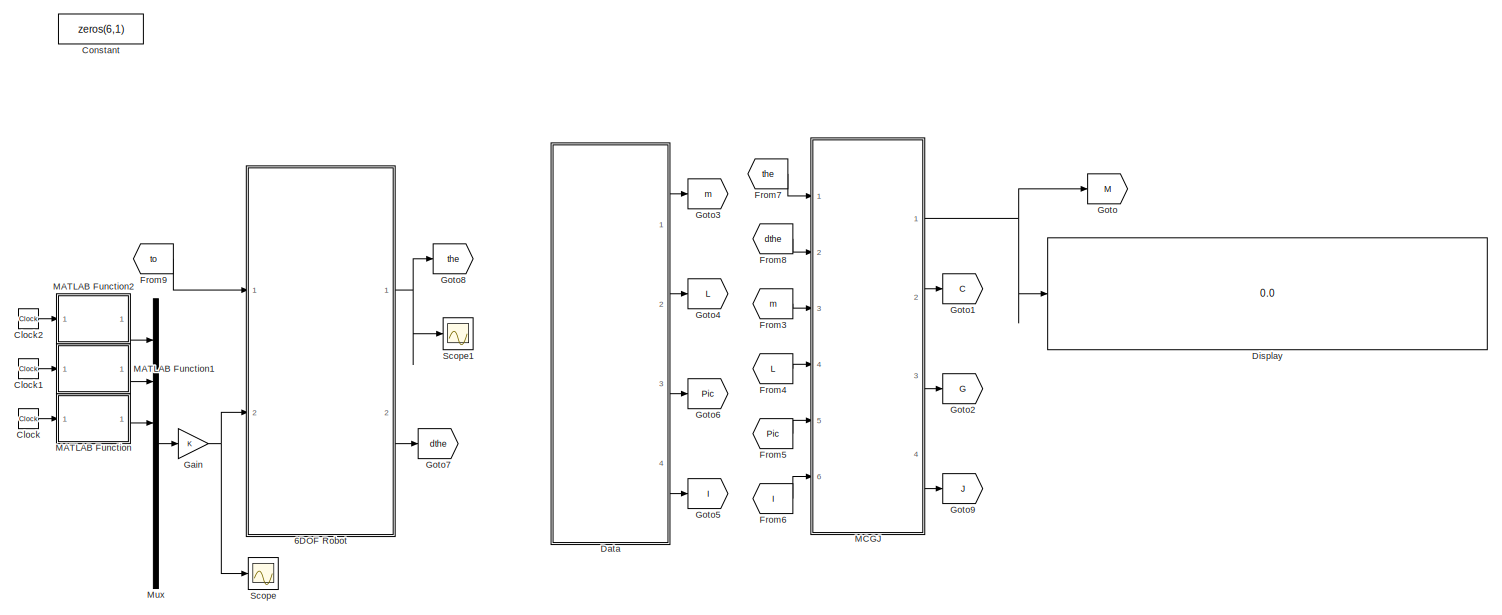
[diagram: root canvas - part 1/2, most of the canvas]
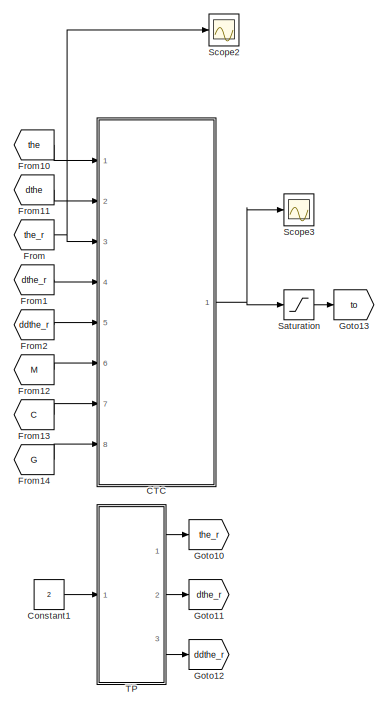
[diagram: root canvas - part 2/2, left side, full height]
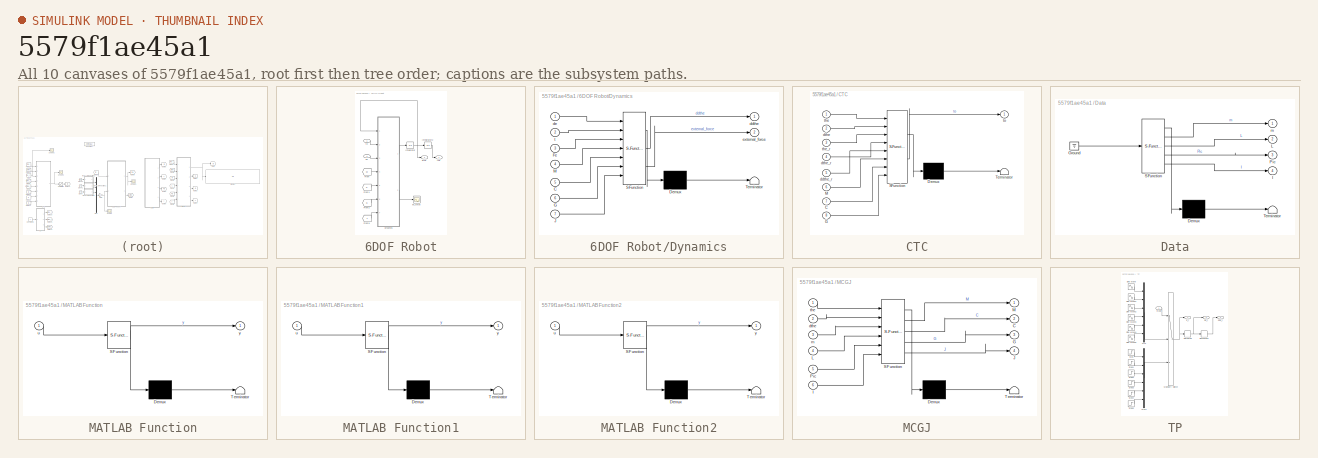
[diagram: thumbnail index - all 10 canvases of the model, root first then tree order]
MODEL slx_5579f1ae45a1
KIND model
CONFIG AbsTol = auto
CONFIG EnableMultiTasking = off
CONFIG FixedStep = 0.01
CONFIG MaxStep = auto
CONFIG MinStep = auto
CONFIG RelTol = 1e-3
CONFIG SampleTimeConstraint = Unconstrained
CONFIG Solver = FixedStepAuto
CONFIG SolverName = FixedStepAuto
CONFIG StartTime = 0.0
CONFIG StopTime = 30
BLOCK [SubSystem] 6DOF Robot
  Ports = [2, 2]
  RequestExecContextInheritance = off
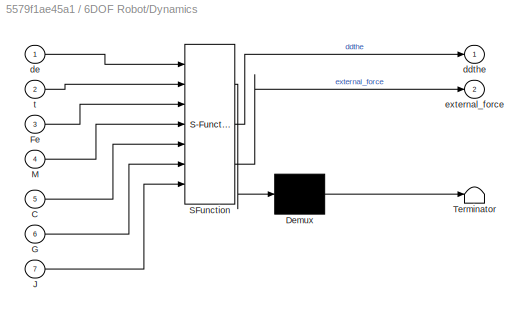
BLOCK [SubSystem] 6DOF Robot/Dynamics
  ErrorFcn = Stateflow.Translate.translate
  PermitHierarchicalResolution = ExplicitOnly
  Ports = [7, 2]
  RequestExecContextInheritance = off
  SFBlockType = MATLAB Function
  TreatAsAtomicUnit = on
BLOCK [Demux] 6DOF Robot/Dynamics/ Demux 
  DisplayOption = bar
  Outputs = 1
  Ports = [1, 1]
BLOCK [S-Function] 6DOF Robot/Dynamics/ SFunction 
  EnableBusSupport = on
  FunctionName = sf_sfun
  PortCounts = [7 3]
  Ports = [7, 3]
  SFcnIsStateOwnerBlock = off
  SFunctionDeploymentMode = off
  Tag = Stateflow S-Function DYN_04 1
BLOCK [Terminator] 6DOF Robot/Dynamics/ Terminator 
BLOCK [Inport] 6DOF Robot/Dynamics/C
  IconDisplay = Port number
  Port = 5
BLOCK [Inport] 6DOF Robot/Dynamics/Fe
  IconDisplay = Port number
  Port = 3
BLOCK [Inport] 6DOF Robot/Dynamics/G
  IconDisplay = Port number
  Port = 6
BLOCK [Inport] 6DOF Robot/Dynamics/J
  IconDisplay = Port number
  Port = 7
BLOCK [Inport] 6DOF Robot/Dynamics/M
  IconDisplay = Port number
  Port = 4
BLOCK [Outport] 6DOF Robot/Dynamics/ddthe
  IconDisplay = Port number
BLOCK [Inport] 6DOF Robot/Dynamics/de
  IconDisplay = Port number
BLOCK [Outport] 6DOF Robot/Dynamics/external_force
  IconDisplay = Port number
  Port = 2
BLOCK [Inport] 6DOF Robot/Dynamics/t
  IconDisplay = Port number
  Port = 2
BLOCK [Inport] 6DOF Robot/Fe
  IconDisplay = Port number
  Port = 2
BLOCK [From] 6DOF Robot/From
  GotoTag = M
  TagVisibility = global
BLOCK [From] 6DOF Robot/From1
  GotoTag = C
  TagVisibility = global
BLOCK [From] 6DOF Robot/From2
  GotoTag = G
  TagVisibility = global
BLOCK [From] 6DOF Robot/From9
  GotoTag = J
  TagVisibility = global
BLOCK [Integrator] 6DOF Robot/Integrator
  InitialCondition = [0;0;0;0;0;0]
  LowerSaturationLimit = -pi
  Ports = [1, 1]
  UpperSaturationLimit = pi
BLOCK [Integrator] 6DOF Robot/Integrator2
  InitialCondition = [0;0;0;0;0;0]
  LowerSaturationLimit = -[170;120;90;120;60;180]*pi/180
  Ports = [1, 1]
  UpperSaturationLimit = [170;120;90;120;60;180]*pi/180
BLOCK [Outport] 6DOF Robot/dthe
  IconDisplay = Port number
  Port = 2
BLOCK [Scope] 6DOF Robot/ex_force
  Floating = off
  NumInputPorts = 1
  Ports = [1]
  ScopeSpecificationString = Simulink.scopes.TimeScopeBlockCfg('CurrentConfiguration', extmgr.ConfigurationSet(extmgr.Configuration('Core','General UI',true),extmgr.Configuration('Core','Source UI',true),extmgr.Configuration('Sources','WiredSimulink',true,'DataLoggingVariableName','ScopeData1'),extmgr.Configuration('Visuals','Time Domain',true,'SerializedDisplays',{struct('MinYLimReal','-168.72496','MaxYLimReal','168.74722','...<+1590ch>
BLOCK [Outport] 6DOF Robot/the
  IconDisplay = Port number
BLOCK [Inport] 6DOF Robot/to
  IconDisplay = Port number
BLOCK [SubSystem] CTC
  ErrorFcn = Stateflow.Translate.translate
  PermitHierarchicalResolution = ExplicitOnly
  Ports = [8, 1]
  RequestExecContextInheritance = off
  SFBlockType = MATLAB Function
  TreatAsAtomicUnit = on
BLOCK [Demux] CTC/ Demux 
  DisplayOption = bar
  Outputs = 1
  Ports = [1, 1]
BLOCK [S-Function] CTC/ SFunction 
  EnableBusSupport = on
  FunctionName = sf_sfun
  PortCounts = [8 2]
  Ports = [8, 2]
  SFcnIsStateOwnerBlock = off
  SFunctionDeploymentMode = off
  Tag = Stateflow S-Function DYN_04 4
BLOCK [Terminator] CTC/ Terminator 
BLOCK [Inport] CTC/C
  IconDisplay = Port number
  Port = 7
BLOCK [Inport] CTC/G
  IconDisplay = Port number
  Port = 8
BLOCK [Inport] CTC/M
  IconDisplay = Port number
  Port = 6
BLOCK [Inport] CTC/ddthe_r
  IconDisplay = Port number
  Port = 5
BLOCK [Inport] CTC/dthe
  IconDisplay = Port number
  Port = 2
BLOCK [Inport] CTC/dthe_r
  IconDisplay = Port number
  Port = 4
BLOCK [Inport] CTC/the
  IconDisplay = Port number
BLOCK [Inport] CTC/the_r
  IconDisplay = Port number
  Port = 3
BLOCK [Outport] CTC/to
  IconDisplay = Port number
BLOCK [Clock] Clock
BLOCK [Clock] Clock1
BLOCK [Clock] Clock2
BLOCK [Constant] Constant
  Commented = on
  Value = zeros(6,1)
BLOCK [Constant] Constant1
  Value = 2
BLOCK [SubSystem] Data
  ErrorFcn = Stateflow.Translate.translate
  PermitHierarchicalResolution = ExplicitOnly
  Ports = [0, 4]
  RequestExecContextInheritance = off
  SFBlockType = MATLAB Function
  TreatAsAtomicUnit = on
BLOCK [Demux] Data/ Demux 
  DisplayOption = bar
  Outputs = 1
  Ports = [1, 1]
BLOCK [Ground] Data/ Ground 
BLOCK [S-Function] Data/ SFunction 
  EnableBusSupport = on
  FunctionName = sf_sfun
  PortCounts = [1 5]
  Ports = [1, 5]
  SFcnIsStateOwnerBlock = off
  SFunctionDeploymentMode = off
  Tag = Stateflow S-Function DYN_04 3
BLOCK [Terminator] Data/ Terminator 
BLOCK [Outport] Data/I
  IconDisplay = Port number
  Port = 4
BLOCK [Outport] Data/L
  IconDisplay = Port number
  Port = 2
BLOCK [Outport] Data/Pic
  IconDisplay = Port number
  Port = 3
BLOCK [Outport] Data/m
  IconDisplay = Port number
BLOCK [Display] Display
  Decimation = 1
  Ports = [1]
BLOCK [From] From
  GotoTag = the_r
BLOCK [From] From1
  GotoTag = dthe_r
BLOCK [From] From10
  GotoTag = the
BLOCK [From] From11
  GotoTag = dthe
BLOCK [From] From12
  GotoTag = M
  TagVisibility = global
BLOCK [From] From13
  GotoTag = C
  TagVisibility = global
BLOCK [From] From14
  GotoTag = G
  TagVisibility = global
BLOCK [From] From2
  GotoTag = ddthe_r
BLOCK [From] From3
  GotoTag = m
BLOCK [From] From4
  GotoTag = L
BLOCK [From] From5
  GotoTag = Pic
BLOCK [From] From6
  GotoTag = I
BLOCK [From] From7
  GotoTag = the
BLOCK [From] From8
  GotoTag = dthe
BLOCK [From] From9
  GotoTag = to
BLOCK [Gain] Gain
  OutDataTypeStr = Inherit: Inherit via internal rule
  ParamDataTypeStr = Inherit: Inherit via internal rule
  SaturateOnIntegerOverflow = off
BLOCK [Goto] Goto
  GotoTag = M
  TagVisibility = global
BLOCK [Goto] Goto1
  GotoTag = C
  TagVisibility = global
BLOCK [Goto] Goto10
  GotoTag = the_r
BLOCK [Goto] Goto11
  GotoTag = dthe_r
BLOCK [Goto] Goto12
  GotoTag = ddthe_r
BLOCK [Goto] Goto13
  GotoTag = to
BLOCK [Goto] Goto2
  GotoTag = G
  TagVisibility = global
BLOCK [Goto] Goto3
  GotoTag = m
BLOCK [Goto] Goto4
  GotoTag = L
BLOCK [Goto] Goto5
  GotoTag = I
BLOCK [Goto] Goto6
  GotoTag = Pic
BLOCK [Goto] Goto7
  GotoTag = dthe
BLOCK [Goto] Goto8
  GotoTag = the
BLOCK [Goto] Goto9
  GotoTag = J
  TagVisibility = global
BLOCK [SubSystem] MATLAB Function
  ErrorFcn = Stateflow.Translate.translate
  PermitHierarchicalResolution = ExplicitOnly
  Ports = [1, 1]
  RequestExecContextInheritance = off
  SFBlockType = MATLAB Function
  TreatAsAtomicUnit = on
BLOCK [Demux] MATLAB Function/ Demux 
  Outputs = 1
  Ports = [1, 1]
BLOCK [S-Function] MATLAB Function/ SFunction 
  EnableBusSupport = on
  FunctionName = sf_sfun
  PortCounts = [1 2]
  Ports = [1, 2]
  SFcnIsStateOwnerBlock = off
  SFunctionDeploymentMode = off
  Tag = Stateflow S-Function DYN_04 5
BLOCK [Terminator] MATLAB Function/ Terminator 
BLOCK [Inport] MATLAB Function/u
  IconDisplay = Port number
BLOCK [Outport] MATLAB Function/y
  IconDisplay = Port number
BLOCK [SubSystem] MATLAB Function1
  ErrorFcn = Stateflow.Translate.translate
  PermitHierarchicalResolution = ExplicitOnly
  Ports = [1, 1]
  RequestExecContextInheritance = off
  SFBlockType = MATLAB Function
  TreatAsAtomicUnit = on
BLOCK [Demux] MATLAB Function1/ Demux 
  Outputs = 1
  Ports = [1, 1]
BLOCK [S-Function] MATLAB Function1/ SFunction 
  EnableBusSupport = on
  FunctionName = sf_sfun
  PortCounts = [1 2]
  Ports = [1, 2]
  SFcnIsStateOwnerBlock = off
  SFunctionDeploymentMode = off
  Tag = Stateflow S-Function DYN_04 6
BLOCK [Terminator] MATLAB Function1/ Terminator 
BLOCK [Inport] MATLAB Function1/u
  IconDisplay = Port number
BLOCK [Outport] MATLAB Function1/y
  IconDisplay = Port number
BLOCK [SubSystem] MATLAB Function2
  ErrorFcn = Stateflow.Translate.translate
  PermitHierarchicalResolution = ExplicitOnly
  Ports = [1, 1]
  RequestExecContextInheritance = off
  SFBlockType = MATLAB Function
  TreatAsAtomicUnit = on
BLOCK [Demux] MATLAB Function2/ Demux 
  Outputs = 1
  Ports = [1, 1]
BLOCK [S-Function] MATLAB Function2/ SFunction 
  EnableBusSupport = on
  FunctionName = sf_sfun
  PortCounts = [1 2]
  Ports = [1, 2]
  SFcnIsStateOwnerBlock = off
  SFunctionDeploymentMode = off
  Tag = Stateflow S-Function DYN_04 7
BLOCK [Terminator] MATLAB Function2/ Terminator 
BLOCK [Inport] MATLAB Function2/u
  IconDisplay = Port number
BLOCK [Outport] MATLAB Function2/y
  IconDisplay = Port number
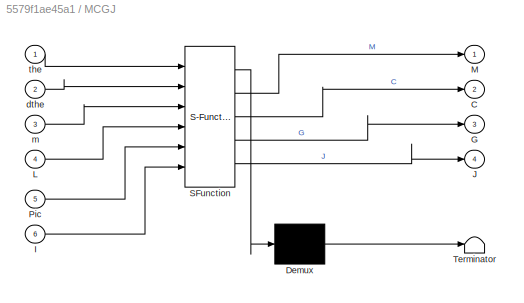
BLOCK [SubSystem] MCGJ
  ErrorFcn = Stateflow.Translate.translate
  PermitHierarchicalResolution = ExplicitOnly
  Ports = [6, 4]
  RequestExecContextInheritance = off
  SFBlockType = MATLAB Function
  TreatAsAtomicUnit = on
BLOCK [Demux] MCGJ/ Demux 
  DisplayOption = bar
  Outputs = 1
  Ports = [1, 1]
BLOCK [S-Function] MCGJ/ SFunction 
  EnableBusSupport = on
  FunctionName = sf_sfun
  PortCounts = [6 5]
  Ports = [6, 5]
  SFcnIsStateOwnerBlock = off
  SFunctionDeploymentMode = off
  Tag = Stateflow S-Function DYN_04 2
BLOCK [Terminator] MCGJ/ Terminator 
BLOCK [Outport] MCGJ/C
  IconDisplay = Port number
  Port = 2
BLOCK [Outport] MCGJ/G
  IconDisplay = Port number
  Port = 3
BLOCK [Inport] MCGJ/I
  IconDisplay = Port number
  Port = 6
BLOCK [Outport] MCGJ/J
  IconDisplay = Port number
  Port = 4
BLOCK [Inport] MCGJ/L
  IconDisplay = Port number
  Port = 4
BLOCK [Outport] MCGJ/M
  IconDisplay = Port number
  VectorParamsAs1DForOutWhenUnconnected = on
BLOCK [Inport] MCGJ/Pic
  IconDisplay = Port number
  Port = 5
BLOCK [Inport] MCGJ/dthe
  IconDisplay = Port number
  Port = 2
BLOCK [Inport] MCGJ/m
  IconDisplay = Port number
  Port = 3
BLOCK [Inport] MCGJ/the
  IconDisplay = Port number
BLOCK [Mux] Mux
  DisplayOption = bar
  Inputs = 6
  Ports = [6, 1]
BLOCK [Saturate] Saturation
  InputPortMap = u0
  LowerLimit = -500
  Ports = [1, 1]
  UpperLimit = 500
BLOCK [Scope] Scope
  Floating = off
  NumInputPorts = 1
  Ports = [1]
  ScopeSpecificationString = Simulink.scopes.TimeScopeBlockCfg('CurrentConfiguration', extmgr.ConfigurationSet(extmgr.Configuration('Core','General UI',true),extmgr.Configuration('Core','Source UI',true),extmgr.Configuration('Sources','WiredSimulink',true,'DataLoggingVariableName','ScopeData1'),extmgr.Configuration('Visuals','Time Domain',true,'SerializedDisplays',{struct('MinYLimReal','-375.00000','MaxYLimReal','375.00000','...<+1505ch>
BLOCK [Scope] Scope1
  Floating = off
  NumInputPorts = 1
  Ports = [1]
  ScopeSpecificationString = Simulink.scopes.TimeScopeBlockCfg('CurrentConfiguration', extmgr.ConfigurationSet(extmgr.Configuration('Core','General UI',true),extmgr.Configuration('Core','Source UI',true),extmgr.Configuration('Sources','WiredSimulink',true,'DataLogging',true,'DataLoggingSaveFormat','StructureWithTime'),extmgr.Configuration('Visuals','Time Domain',true,'SerializedDisplays',{struct('MinYLimReal','-1.96363','MaxY...<+1673ch>
BLOCK [Scope] Scope2
  Floating = off
  NumInputPorts = 1
  Ports = [1]
  ScopeSpecificationString = Simulink.scopes.TimeScopeBlockCfg('CurrentConfiguration', extmgr.ConfigurationSet(extmgr.Configuration('Core','General UI',true),extmgr.Configuration('Core','Source UI',true),extmgr.Configuration('Sources','WiredSimulink',true,'DataLoggingVariableName','ScopeData2'),extmgr.Configuration('Visuals','Time Domain',true,'SerializedDisplays',{struct('MinYLimReal','-1.00000','MaxYLimReal','1.00000','YLab...<+1435ch>
BLOCK [Scope] Scope3
  Floating = off
  NumInputPorts = 1
  Ports = [1]
  ScopeSpecificationString = Simulink.scopes.TimeScopeBlockCfg('CurrentConfiguration', extmgr.ConfigurationSet(extmgr.Configuration('Core','General UI',true),extmgr.Configuration('Core','Source UI',true),extmgr.Configuration('Sources','WiredSimulink',true,'DataLoggingVariableName','ScopeData3'),extmgr.Configuration('Visuals','Time Domain',true,'SerializedDisplays',{struct('MinYLimReal','-52.08266','MaxYLimReal','6.7474','YLab...<+1477ch>
BLOCK [SubSystem] TP
  Ports = [1, 3]
  RequestExecContextInheritance = off
BLOCK [Derivative] TP/Derivative
BLOCK [Derivative] TP/Derivative1
BLOCK [MultiPortSwitch] TP/Multiport Switch
  InputSameDT = off
  Inputs = 2
  Ports = [3, 1]
  SaturateOnIntegerOverflow = off
BLOCK [Mux] TP/Mux
  DisplayOption = bar
  Inputs = 6
  Ports = [6, 1]
BLOCK [Mux] TP/Mux1
  DisplayOption = bar
  Inputs = 6
  Ports = [6, 1]
BLOCK [Sin] TP/Sine Wave
  Amplitude = pi/6
  Frequency = 2*pi*0.2
  Ports = [0, 1]
  SampleTime = 0
BLOCK [Sin] TP/Sine Wave1
  Amplitude = pi/6
  Frequency = 2*pi*0.2
  Ports = [0, 1]
  SampleTime = 0
BLOCK [Sin] TP/Sine Wave2
  Amplitude = pi/6
  Frequency = 2*pi*0.2
  Ports = [0, 1]
  SampleTime = 0
BLOCK [Sin] TP/Sine Wave3
  Amplitude = pi/6
  Frequency = 2*pi*0.2
  Ports = [0, 1]
  SampleTime = 0
BLOCK [Sin] TP/Sine Wave4
  Amplitude = pi/6
  Frequency = 2*pi*0.2
  Ports = [0, 1]
  SampleTime = 0
BLOCK [Sin] TP/Sine Wave5
  Amplitude = pi/6
  Frequency = 2*pi*0.2
  Ports = [0, 1]
  SampleTime = 0
BLOCK [Step] TP/Step
  After = 0
  SampleTime = 0
BLOCK [Step] TP/Step1
  After = 0
  SampleTime = 0
BLOCK [Step] TP/Step2
  After = 0
  SampleTime = 0
BLOCK [Step] TP/Step3
  After = 0
  SampleTime = 0
BLOCK [Step] TP/Step4
  After = 0
  SampleTime = 0
BLOCK [Step] TP/Step5
  After = 0
  SampleTime = 0
BLOCK [Outport] TP/dde_r
  IconDisplay = Port number
  Port = 3
BLOCK [Outport] TP/de_r
  IconDisplay = Port number
  Port = 2
BLOCK [Outport] TP/e_r
  IconDisplay = Port number
BLOCK [Inport] TP/mode
  IconDisplay = Port number
LINE 6DOF Robot/Dynamics:1 -> 6DOF Robot/Integrator:1
LINE 6DOF Robot/Dynamics:2 -> 6DOF Robot/ex_force:1
LINE 6DOF Robot/Fe:1 -> 6DOF Robot/Dynamics:3
LINE 6DOF Robot/From1:1 -> 6DOF Robot/Dynamics:5
LINE 6DOF Robot/From2:1 -> 6DOF Robot/Dynamics:6
LINE 6DOF Robot/From9:1 -> 6DOF Robot/Dynamics:7
LINE 6DOF Robot/From:1 -> 6DOF Robot/Dynamics:4
LINE 6DOF Robot/Integrator2:1 -> 6DOF Robot/the:1
NET 6DOF Robot/Integrator:1 -> 6DOF Robot/Dynamics:1, 6DOF Robot/Integrator2:1, 6DOF Robot/dthe:1
LINE 6DOF Robot/to:1 -> 6DOF Robot/Dynamics:2
NET 6DOF Robot:1 -> Goto8:1, Scope1:1
LINE 6DOF Robot:2 -> Goto7:1
NET CTC:1 -> Saturation:1, Scope3:1
LINE Clock1:1 -> MATLAB Function1:1
LINE Clock2:1 -> MATLAB Function2:1
LINE Clock:1 -> MATLAB Function:1
LINE Constant1:1 -> TP:1
LINE Data:1 -> Goto3:1
LINE Data:2 -> Goto4:1
LINE Data:3 -> Goto6:1
LINE Data:4 -> Goto5:1
LINE From10:1 -> CTC:1
LINE From11:1 -> CTC:2
LINE From12:1 -> CTC:6
LINE From13:1 -> CTC:7
LINE From14:1 -> CTC:8
LINE From1:1 -> CTC:4
LINE From2:1 -> CTC:5
LINE From3:1 -> MCGJ:3
LINE From4:1 -> MCGJ:4
LINE From5:1 -> MCGJ:5
LINE From6:1 -> MCGJ:6
LINE From7:1 -> MCGJ:1
LINE From8:1 -> MCGJ:2
LINE From9:1 -> 6DOF Robot:1
NET From:1 -> CTC:3, Scope2:1
NET Gain:1 -> 6DOF Robot:2, Scope:1
LINE MATLAB Function1:1 -> Mux:2
LINE MATLAB Function2:1 -> Mux:1
LINE MATLAB Function:1 -> Mux:3
NET MCGJ:1 -> Display:1, Goto:1
LINE MCGJ:2 -> Goto1:1
LINE MCGJ:3 -> Goto2:1
LINE MCGJ:4 -> Goto9:1
LINE Mux:1 -> Gain:1
LINE Saturation:1 -> Goto13:1
LINE TP/Derivative1:1 -> TP/dde_r:1
NET TP/Derivative:1 -> TP/Derivative1:1, TP/de_r:1
NET TP/Multiport Switch:1 -> TP/Derivative:1, TP/e_r:1
LINE TP/Mux1:1 -> TP/Multiport Switch:3
LINE TP/Mux:1 -> TP/Multiport Switch:2
LINE TP/Sine Wave1:1 -> TP/Mux:2
LINE TP/Sine Wave2:1 -> TP/Mux:3
LINE TP/Sine Wave3:1 -> TP/Mux:4
LINE TP/Sine Wave4:1 -> TP/Mux:5
LINE TP/Sine Wave5:1 -> TP/Mux:6
LINE TP/Sine Wave:1 -> TP/Mux:1
LINE TP/Step1:1 -> TP/Mux1:2
LINE TP/Step2:1 -> TP/Mux1:3
LINE TP/Step3:1 -> TP/Mux1:4
LINE TP/Step4:1 -> TP/Mux1:5
LINE TP/Step5:1 -> TP/Mux1:6
LINE TP/Step:1 -> TP/Mux1:1
LINE TP/mode:1 -> TP/Multiport Switch:1
LINE TP:1 -> Goto10:1
LINE TP:2 -> Goto11:1
LINE TP:3 -> Goto12:1
note: NET lines group one-source signal fan-out (src -> all destinations, sorted); 1:1 wires keep LINE
CHART 6DOF Robot/Dynamics states=1 transitions=1
  STATE_LABEL 'eML_blk_kernel()'
  STATE_LABEL "SCRIPT:\nfunction [ddthe,external_force] = DYN_6DOF(de,t,Fe,M,C,G,J)\n%%\nFc = diag([0,0,0,0,0,0]);\nFv = 1*diag([5,5,5,0.5,0.1,0.05]);\nexternal_force = Fc*sign(de) + Fv*de + J.'*Fe;\n%%\nddthe = inv(M)*(t - C*de - G - external_force);"
CHART MCGJ states=1 transitions=1
  STATE_LABEL 'eML_blk_kernel()'
  STATE_LABEL 'SCRIPT:\nfunction [M,C,G,J] = MCGJ_6DOF(the,dthe,m,L,Pic,I)\ne1 = the(1); e2 = the(2); e3 = the(3);\ne4 = the(4); e5 = the(5); e6 = the(6);\nde1 = dthe(1); de2 = dthe(2); de3 = dthe(3);\nde4 = dthe(4); de5 = dthe(5); de6 = dthe(6);\nx1 = Pic(1,1); y1 = Pic(1,2); z1 = Pic(1,3);\nx2 = Pic(2,1); y2 = Pic(2,2); z2 = Pic(2,3);\nx3 = Pic(3,1); y3 = Pic(3,2); z3 = Pic(3,3);\nx4 = Pic(4,1); y4 = Pic(4,2); z4 = Pic...<+3608ch>'
CHART Data states=1 transitions=1
  STATE_LABEL 'eML_blk_kernel()'
  STATE_LABEL 'SCRIPT:\nfunction [m,L,Pic,I] = DATA_6DOF()\na1=0.075; a2=0.270; a3=0.090; d1=0.335; d4=0.295; d7=0.08;\nm1 = 5.6511; m2 = 4.6061; m3 = 4.2963; m4 = 1.9151; m5 = 0.3399; m6 = 0.0714;\nm = [m1 m2 m3 m4 m5 m6];\nL = [a1 a2 a3 d1 d4 d7];\n% Pic = zeros(6,3);\n% I = zeros(6,6);\nPic = [0.0373,  -0.0076,   0.1064;\n       0.1127,   0.0065,   0.0648;\n       0.0447,   0.0125,  -0.0554;\n       0.0006,   0.0052,   ...<+1086ch>'
CHART CTC states=1 transitions=1
  STATE_LABEL 'eML_blk_kernel()'
  STATE_LABEL 'SCRIPT:\nfunction to = fcn(the,dthe,the_r,dthe_r,ddthe_r,M,C,G)\n%% Control:\n% Controler parameters\n% % with noise\n\n% without noise\nld1 = 18;\nld2 = 30;\nld3 = 18;\nld4 = 34;\n% 24 27\nld5 = 10;\nld6 = 10;\nKp = diag([ld1^2,ld2^2,ld3^2,ld4^2,5*ld5^2,1.5*ld6^2]);\nKv = 2*diag([ld1,ld2,ld3,ld4,ld5,ld6]);\n\n% Designed sliding mode control\nE = the_r - the;\ndE = dthe_r - dthe;\nalpha = M;\nbeta = C*dthe + G;\ndto = ...<+47ch>'
CHART MATLAB Function states=1 transitions=1
  STATE_LABEL 'eML_blk_kernel()'
  STATE_LABEL 'SCRIPT:\nfunction y = fcn(u)\n\nif u >=10 && u<10.1\n    y = 100;\nelseif u >=11 && u<11.1\n    y = -50;\nelse\n    y = 0;\nend'
CHART MATLAB Function1 states=1 transitions=1
  STATE_LABEL 'eML_blk_kernel()'
  STATE_LABEL 'SCRIPT:\nfunction y = fcn(u)\n\nif u >=20 && u<20.1\n    y = 300;\nelseif u >=21 && u<21.1\n    y = -300;\nelse\n    y = 0;\nend'
CHART MATLAB Function2 states=1 transitions=1
  STATE_LABEL 'eML_blk_kernel()'
  STATE_LABEL 'SCRIPT:\nfunction y = fcn(u)\n\nif u >=5 && u<5.1\n    y = 300;\nelseif u >=6 && u<6.1\n    y = -300;\nelse\n    y = 0;\nend'
